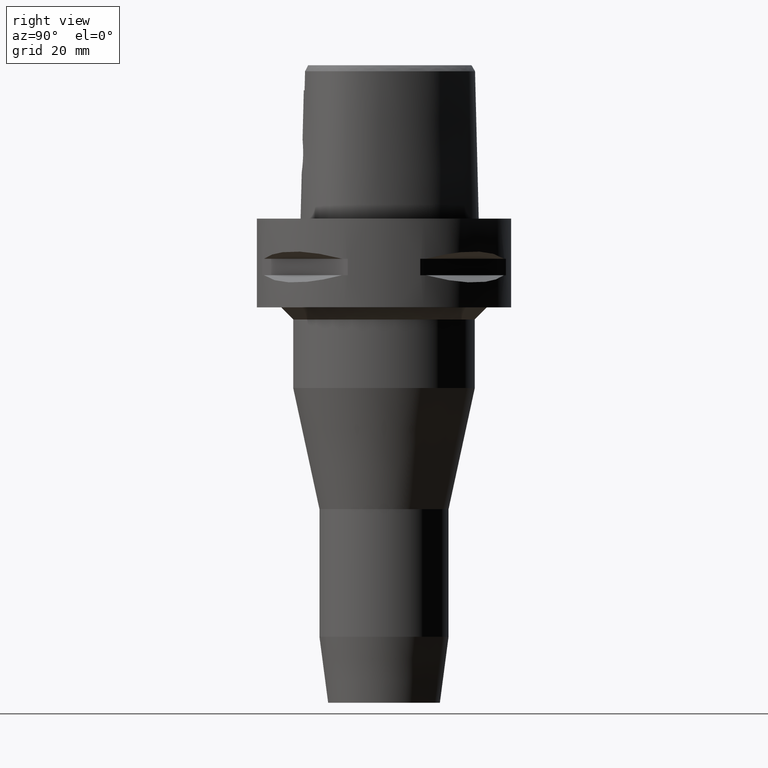
[diagram: clean part render]
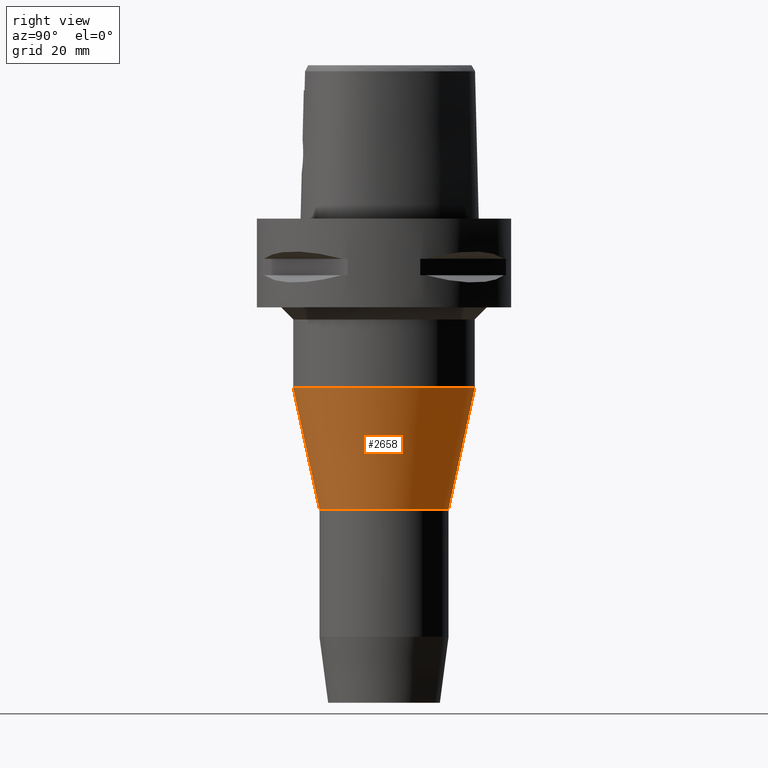
[diagram: same view with one face highlighted and labeled with its STEP entity id]
A machine part, right view. The second image highlights one B-rep face of the part: STEP entity #2658.
In plain terms, the highlighted conical surface has half-angle 12.225 deg.
Its self-contained STEP definition (entity closure, byte-faithful):
#626=DIRECTION('',(0.E0,2.117512544631E-1,-9.773235934087E-1));
#627=VECTOR('',#626,3.069639429755E1);
#628=CARTESIAN_POINT('',(0.E0,-2.25E1,-4.199968962043E1));
#629=LINE('',#628,#627);
#641=DIRECTION('',(0.E0,-2.117512544631E-1,-9.773235934087E-1));
#642=VECTOR('',#641,3.069639429755E1);
#643=CARTESIAN_POINT('',(0.E0,2.25E1,-4.199968962043E1));
#644=LINE('',#643,#642);
#648=CARTESIAN_POINT('',(0.E0,0.E0,-7.2E1));
#649=DIRECTION('',(0.E0,0.E0,-1.E0));
#650=DIRECTION('',(0.E0,1.E0,0.E0));
#651=AXIS2_PLACEMENT_3D('',#648,#649,#650);
#656=CARTESIAN_POINT('',(0.E0,0.E0,-4.199968962043E1));
#657=DIRECTION('',(0.E0,0.E0,1.E0));
#658=DIRECTION('',(0.E0,-1.E0,0.E0));
#659=AXIS2_PLACEMENT_3D('',#656,#657,#658);
#1676=CARTESIAN_POINT('',(0.E0,2.25E1,-4.199968962043E1));
#1677=VERTEX_POINT('',#1676);
#1678=CARTESIAN_POINT('',(0.E0,-2.25E1,-4.199968962043E1));
#1679=VERTEX_POINT('',#1678);
#1680=CARTESIAN_POINT('',(0.E0,1.6E1,-7.2E1));
#1681=VERTEX_POINT('',#1680);
#1682=CARTESIAN_POINT('',(0.E0,-1.6E1,-7.2E1));
#1683=VERTEX_POINT('',#1682);
#2646=CARTESIAN_POINT('',(0.E0,0.E0,-5.699984481022E1));
#2647=DIRECTION('',(0.E0,0.E0,1.E0));
#2648=DIRECTION('',(0.E0,1.E0,0.E0));
#2649=AXIS2_PLACEMENT_3D('',#2646,#2647,#2648);
#2650=CONICAL_SURFACE('',#2649,1.925E1,1.2225E1);
#2651=ORIENTED_EDGE('',*,*,#2636,.T.);
#2653=ORIENTED_EDGE('',*,*,#2652,.T.);
#2654=ORIENTED_EDGE('',*,*,#2639,.F.);
#2655=ORIENTED_EDGE('',*,*,#2610,.T.);
#2656=EDGE_LOOP('',(#2651,#2653,#2654,#2655));
#2657=FACE_OUTER_BOUND('',#2656,.F.);
#652=CIRCLE('',#651,1.6E1);
#660=CIRCLE('',#659,2.25E1);
#2610=EDGE_CURVE('',#1679,#1677,#660,.T.);
#2636=EDGE_CURVE('',#1677,#1681,#644,.T.);
#2639=EDGE_CURVE('',#1679,#1683,#629,.T.);
#2652=EDGE_CURVE('',#1681,#1683,#652,.T.);
#2658=ADVANCED_FACE('',(#2657),#2650,.T.);